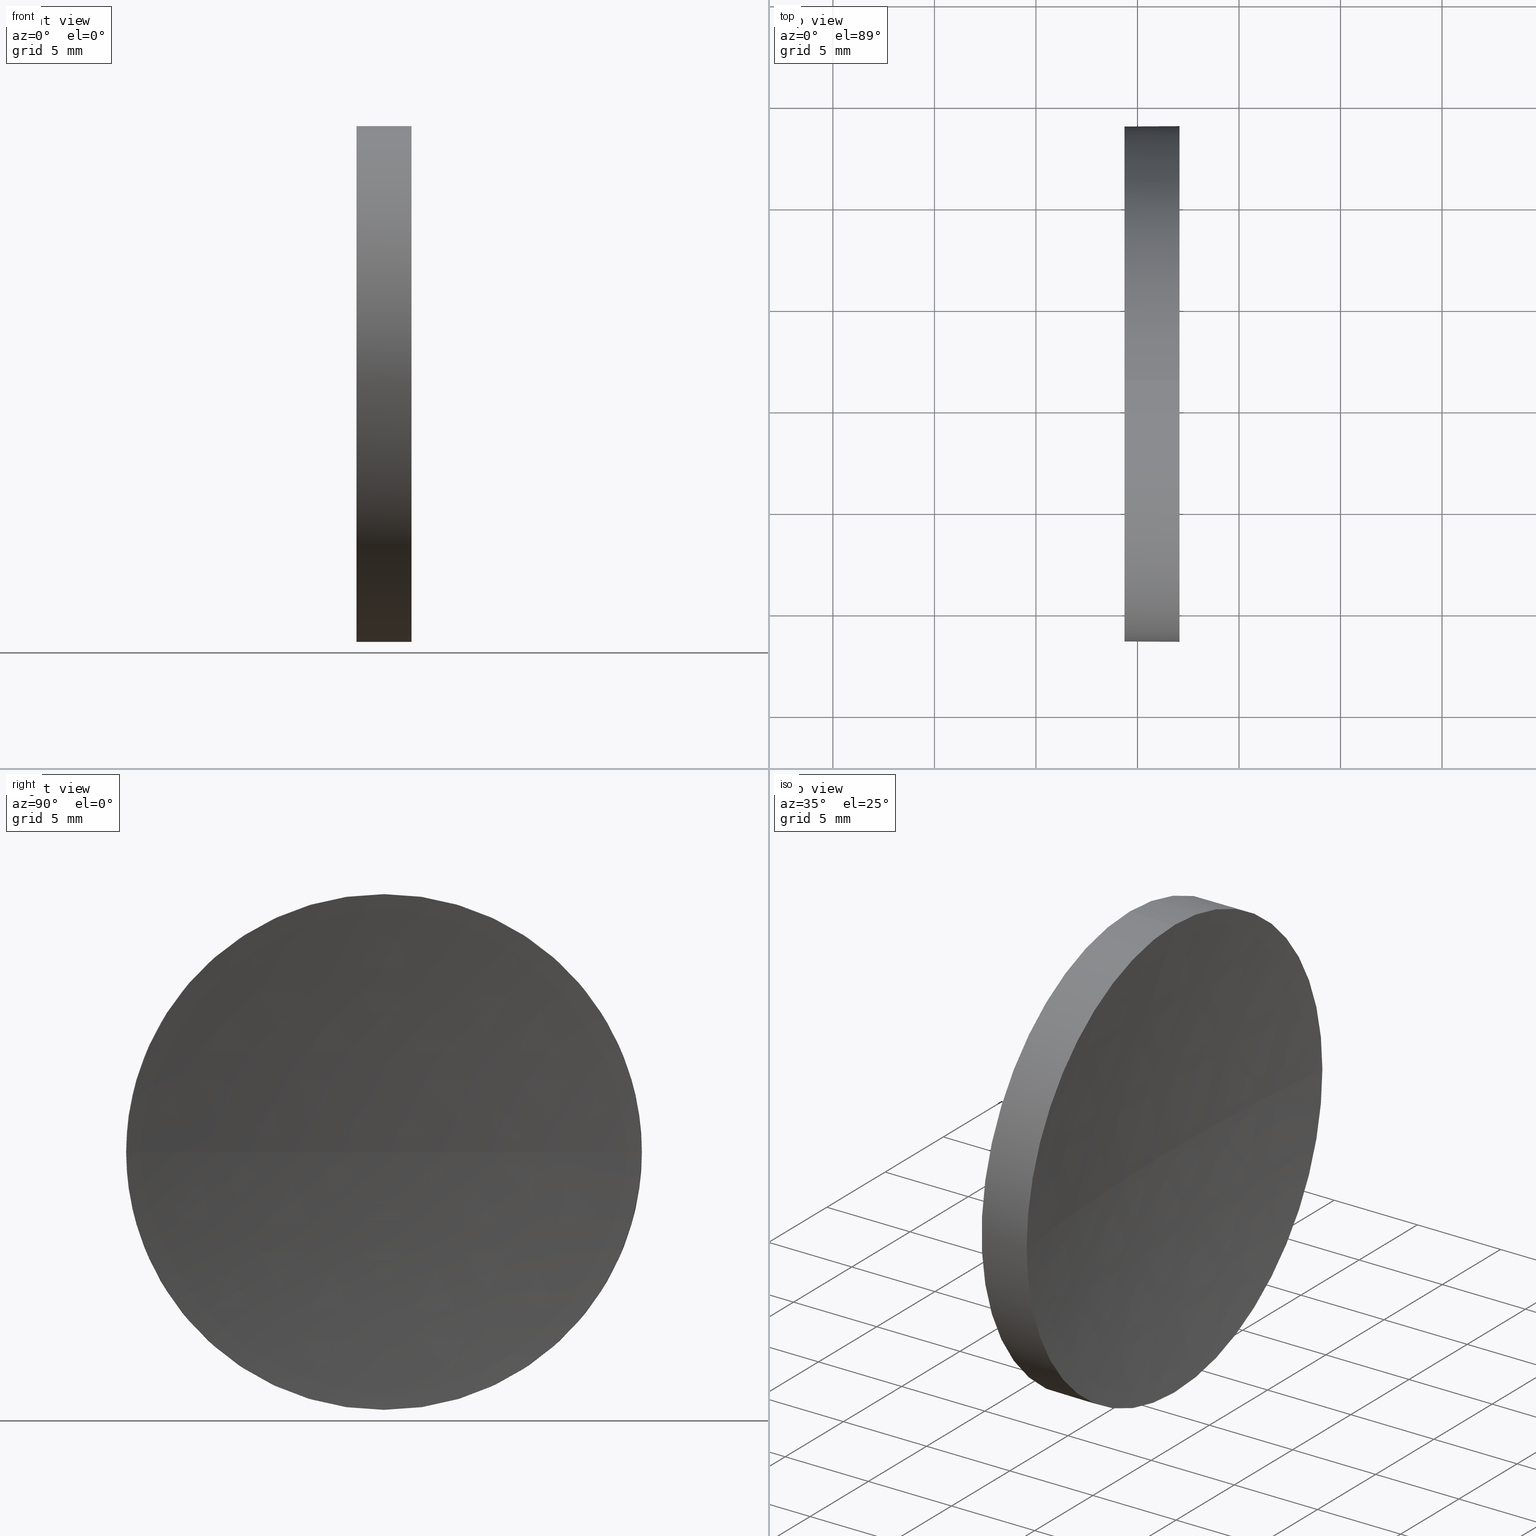
[diagram: canonical four-view strip — front | top / right | iso, engineering-drawing reading convention]
A machine part, canonical four-view strip (front | top / right | iso — engineering-drawing reading convention). The complete STEP part file that produces these views, byte-faithful:
ISO-10303-21;
HEADER;
FILE_DESCRIPTION (( 'STEP AP214' ),
    '1' );
FILE_NAME ('120271.STEP',
    '2019-06-25T03:34:57',
    ( '' ),
    ( '' ),
    'SwSTEP 2.0',
    'SolidWorks 2016',
    '' );
FILE_SCHEMA (( 'AUTOMOTIVE_DESIGN' ));
ENDSEC;

DATA;
#1 = CARTESIAN_POINT ( 'NONE',  ( 111.9552297575605700, 71.19398908659370300, 0.0000000000000000000 ) ) ;
#2 = DIRECTION ( 'NONE',  ( -1.000000000000000000, -0.0000000000000000000, -0.0000000000000000000 ) ) ;
#3 = DIRECTION ( 'NONE',  ( 0.0000000000000000000, 0.0000000000000000000, 1.000000000000000000 ) ) ;
#4 = DIRECTION ( 'NONE',  ( 0.0000000000000000000, 0.0000000000000000000, 1.000000000000000000 ) ) ;
#5 = SURFACE_STYLE_FILL_AREA ( #44 ) ;
#6 =( LENGTH_UNIT ( ) NAMED_UNIT ( * ) SI_UNIT ( .MILLI., .METRE. ) );
#7 = DIRECTION ( 'NONE',  ( -1.000000000000000000, -0.0000000000000000000, -0.0000000000000000000 ) ) ;
#8 = APPLICATION_PROTOCOL_DEFINITION ( 'draft international standard', 'automotive_design', 1998, #130 ) ;
#9 = EDGE_CURVE ( 'NONE', #12, #182, #91, .T. ) ;
#10 = PLANE ( 'NONE',  #90 ) ;
#11 = EDGE_LOOP ( 'NONE', ( #39, #54, #65, #102, #119 ) ) ;
#12 = VERTEX_POINT ( 'NONE', #58 ) ;
#13 = PRODUCT_DEFINITION_SHAPE ( 'NONE', 'NONE',  #160 ) ;
#14 = EDGE_CURVE ( 'NONE', #67, #37, #124, .T. ) ;
#15 = DIRECTION ( 'NONE',  ( -1.000000000000000000, -0.0000000000000000000, -0.0000000000000000000 ) ) ;
#16 = DIRECTION ( 'NONE',  ( -1.000000000000000000, -0.0000000000000000000, -0.0000000000000000000 ) ) ;
#17 = AXIS2_PLACEMENT_3D ( 'NONE', #149, #174, #31 ) ;
#18 = DIRECTION ( 'NONE',  ( 0.0000000000000000000, 0.0000000000000000000, 1.000000000000000000 ) ) ;
#19 = ADVANCED_BREP_SHAPE_REPRESENTATION ( '120271', ( #106, #155 ), #118 ) ;
#20 = ADVANCED_FACE ( 'NONE', ( #88 ), #170, .F. ) ;
#21 = CARTESIAN_POINT ( 'NONE',  ( 119.3629307920347200, 71.19398908659370300, 0.0000000000000000000 ) ) ;
#22 = VERTEX_POINT ( 'NONE', #176 ) ;
#23 = FILL_AREA_STYLE_COLOUR ( '', #77 ) ;
#24 = CIRCLE ( 'NONE', #29, 12.69999999999997400 ) ;
#25 = DIRECTION ( 'NONE',  ( -1.000000000000000000, -0.0000000000000000000, -0.0000000000000000000 ) ) ;
#26 = EDGE_CURVE ( 'NONE', #37, #182, #133, .T. ) ;
#27 = VECTOR ( 'NONE', #16, 1000.000000000000000 ) ;
#28 = ORIENTED_EDGE ( 'NONE', *, *, #93, .F. ) ;
#29 = AXIS2_PLACEMENT_3D ( 'NONE', #81, #2, #95 ) ;
#30 = LINE ( 'NONE', #126, #97 ) ;
#31 = DIRECTION ( 'NONE',  ( 0.0000000000000000000, -1.000000000000000000, 0.0000000000000000000 ) ) ;
#32 = ADVANCED_FACE ( 'NONE', ( #51 ), #100, .T. ) ;
#33 = CARTESIAN_POINT ( 'NONE',  ( 119.3629307920347200, 71.19398908659370300, 0.0000000000000000000 ) ) ;
#34 = EDGE_LOOP ( 'NONE', ( #161, #79, #60, #166 ) ) ;
#35 =( GEOMETRIC_REPRESENTATION_CONTEXT ( 3 ) GLOBAL_UNCERTAINTY_ASSIGNED_CONTEXT ( ( #74 ) ) GLOBAL_UNIT_ASSIGNED_CONTEXT ( ( #103, #84, #136 ) ) REPRESENTATION_CONTEXT ( 'NONE', 'WORKASPACE' ) );
#36 = APPLICATION_PROTOCOL_DEFINITION ( 'draft international standard', 'automotive_design', 1998, #154 ) ;
#37 = VERTEX_POINT ( 'NONE', #147 ) ;
#38 = LINE ( 'NONE', #57, #27 ) ;
#39 = ORIENTED_EDGE ( 'NONE', *, *, #43, .T. ) ;
#40 = CARTESIAN_POINT ( 'NONE',  ( 235.9829307920347200, 71.19398908659371700, 0.0000000000000000000 ) ) ;
#41 = AXIS2_PLACEMENT_3D ( 'NONE', #89, #87, #71 ) ;
#42 = DIRECTION ( 'NONE',  ( -1.000000000000000000, -0.0000000000000000000, -0.0000000000000000000 ) ) ;
#43 = EDGE_CURVE ( 'NONE', #37, #22, #24, .T. ) ;
#44 = FILL_AREA_STYLE ('',( #23 ) ) ;
#45 = CARTESIAN_POINT ( 'NONE',  ( 0.0000000000000000000, 0.0000000000000000000, 0.0000000000000000000 ) ) ;
#46 = ORIENTED_EDGE ( 'NONE', *, *, #43, .F. ) ;
#47 = CARTESIAN_POINT ( 'NONE',  ( 119.3629307920347200, 71.19398908659370300, 0.0000000000000000000 ) ) ;
#48 =( NAMED_UNIT ( * ) SI_UNIT ( $, .STERADIAN. ) SOLID_ANGLE_UNIT ( ) );
#49 = PRODUCT_CONTEXT ( 'NONE', #130, 'mechanical' ) ;
#50 = ORIENTED_EDGE ( 'NONE', *, *, #127, .F. ) ;
#51 = FACE_OUTER_BOUND ( 'NONE', #11, .T. ) ;
#52 = CIRCLE ( 'NONE', #122, 12.70000000000000300 ) ;
#53 = AXIS2_PLACEMENT_3D ( 'NONE', #163, #55, #108 ) ;
#54 = ORIENTED_EDGE ( 'NONE', *, *, #93, .T. ) ;
#55 = DIRECTION ( 'NONE',  ( -1.000000000000000000, -0.0000000000000000000, -0.0000000000000000000 ) ) ;
#56 = CIRCLE ( 'NONE', #96, 12.69999999999997400 ) ;
#57 = CARTESIAN_POINT ( 'NONE',  ( 111.9552297575605700, 71.19398908659370300, -12.69999999999998900 ) ) ;
#58 = CARTESIAN_POINT ( 'NONE',  ( 122.0686893645468100, 58.49398908659369300, 0.0000000000000000000 ) ) ;
#59 = FILL_AREA_STYLE ('',( #61 ) ) ;
#60 = ORIENTED_EDGE ( 'NONE', *, *, #83, .F. ) ;
#61 = FILL_AREA_STYLE_COLOUR ( '', #63 ) ;
#62 = SURFACE_SIDE_STYLE ('',( #5 ) ) ;
#63 = COLOUR_RGB ( '',1.000000000000000000, 1.000000000000000000, 1.000000000000000000 ) ;
#64 = MECHANICAL_DESIGN_GEOMETRIC_PRESENTATION_REPRESENTATION (  '', ( #110 ), #35 ) ;
#65 = ORIENTED_EDGE ( 'NONE', *, *, #184, .F. ) ;
#66 = FACE_OUTER_BOUND ( 'NONE', #173, .T. ) ;
#67 = VERTEX_POINT ( 'NONE', #177 ) ;
#68 = PRESENTATION_STYLE_ASSIGNMENT (( #134 ) ) ;
#69 = AXIS2_PLACEMENT_3D ( 'NONE', #1, #42, #94 ) ;
#70 = DIRECTION ( 'NONE',  ( -1.000000000000000000, -0.0000000000000000000, -0.0000000000000000000 ) ) ;
#71 = DIRECTION ( 'NONE',  ( 0.0000000000000000000, -1.000000000000000000, 0.0000000000000000000 ) ) ;
#72 = ADVANCED_FACE ( 'NONE', ( #120 ), #112, .T. ) ;
#73 = DIRECTION ( 'NONE',  ( 0.0000000000000000000, 0.0000000000000000000, -1.000000000000000000 ) ) ;
#74 = UNCERTAINTY_MEASURE_WITH_UNIT (LENGTH_MEASURE( 1.000000000000000100E-005 ), #103, 'distance_accuracy_value', 'NONE');
#75 = PRODUCT_DEFINITION_CONTEXT ( 'detailed design', #154, 'design' ) ;
#76 = EDGE_CURVE ( 'NONE', #67, #141, #30, .T. ) ;
#77 = COLOUR_RGB ( '',1.000000000000000000, 1.000000000000000000, 1.000000000000000000 ) ;
#78 = DIRECTION ( 'NONE',  ( 0.0000000000000000000, 0.0000000000000000000, 1.000000000000000000 ) ) ;
#79 = ORIENTED_EDGE ( 'NONE', *, *, #14, .F. ) ;
#80 = ORIENTED_EDGE ( 'NONE', *, *, #127, .T. ) ;
#81 = CARTESIAN_POINT ( 'NONE',  ( 122.0686893645468100, 71.19398908659370300, 0.0000000000000000000 ) ) ;
#82 = DIRECTION ( 'NONE',  ( 0.0000000000000000000, -1.000000000000000000, -1.224646799147353000E-016 ) ) ;
#83 = EDGE_CURVE ( 'NONE', #12, #67, #146, .T. ) ;
#84 =( NAMED_UNIT ( * ) PLANE_ANGLE_UNIT ( ) SI_UNIT ( $, .RADIAN. ) );
#85 = DIRECTION ( 'NONE',  ( 0.0000000000000000000, 0.0000000000000000000, 1.000000000000000000 ) ) ;
#86 = ORIENTED_EDGE ( 'NONE', *, *, #156, .T. ) ;
#87 = DIRECTION ( 'NONE',  ( 0.0000000000000000000, 0.0000000000000000000, 1.000000000000000000 ) ) ;
#88 = FACE_OUTER_BOUND ( 'NONE', #105, .T. ) ;
#89 = CARTESIAN_POINT ( 'NONE',  ( 235.9829307920347200, 71.19398908659371700, 0.0000000000000000000 ) ) ;
#90 = AXIS2_PLACEMENT_3D ( 'NONE', #47, #151, #73 ) ;
#91 = CIRCLE ( 'NONE', #175, 114.6200000000000200 ) ;
#92 = SURFACE_STYLE_FILL_AREA ( #59 ) ;
#93 = EDGE_CURVE ( 'NONE', #22, #169, #38, .T. ) ;
#94 = DIRECTION ( 'NONE',  ( 0.0000000000000000000, 0.0000000000000000000, 1.000000000000000000 ) ) ;
#95 = DIRECTION ( 'NONE',  ( 0.0000000000000000000, 0.0000000000000000000, 1.000000000000000000 ) ) ;
#96 = AXIS2_PLACEMENT_3D ( 'NONE', #114, #7, #4 ) ;
#97 = VECTOR ( 'NONE', #99, 1000.000000000000000 ) ;
#98 = CARTESIAN_POINT ( 'NONE',  ( 121.3629307920347000, 71.19398908659370300, 0.0000000000000000000 ) ) ;
#99 = DIRECTION ( 'NONE',  ( -1.000000000000000000, -0.0000000000000000000, -0.0000000000000000000 ) ) ;
#100 = CYLINDRICAL_SURFACE ( 'NONE', #69, 12.69999999999998900 ) ;
#101 =( LENGTH_UNIT ( ) NAMED_UNIT ( * ) SI_UNIT ( .MILLI., .METRE. ) );
#102 = ORIENTED_EDGE ( 'NONE', *, *, #76, .F. ) ;
#103 =( LENGTH_UNIT ( ) NAMED_UNIT ( * ) SI_UNIT ( .MILLI., .METRE. ) );
#104 = AXIS2_PLACEMENT_3D ( 'NONE', #165, #25, #85 ) ;
#105 = EDGE_LOOP ( 'NONE', ( #46, #158, #131, #145 ) ) ;
#106 = MANIFOLD_SOLID_BREP ( '��ת1', #121 ) ;
#107 = AXIS2_PLACEMENT_3D ( 'NONE', #109, #15, #3 ) ;
#108 = DIRECTION ( 'NONE',  ( 0.0000000000000000000, 0.0000000000000000000, 1.000000000000000000 ) ) ;
#109 = CARTESIAN_POINT ( 'NONE',  ( 111.9552297575605700, 71.19398908659370300, 0.0000000000000000000 ) ) ;
#110 = STYLED_ITEM ( 'NONE', ( #68 ), #106 ) ;
#111 = ORIENTED_EDGE ( 'NONE', *, *, #184, .T. ) ;
#112 = CYLINDRICAL_SURFACE ( 'NONE', #107, 12.69999999999998900 ) ;
#113 = PRODUCT_RELATED_PRODUCT_CATEGORY ( 'part', '', ( #115 ) ) ;
#114 = CARTESIAN_POINT ( 'NONE',  ( 122.0686893645468100, 71.19398908659370300, 0.0000000000000000000 ) ) ;
#115 = PRODUCT ( '120271', '120271', '', ( #49 ) ) ;
#116 = ADVANCED_FACE ( 'NONE', ( #183 ), #140, .F. ) ;
#117 = DIRECTION ( 'NONE',  ( -1.000000000000000000, -0.0000000000000000000, -0.0000000000000000000 ) ) ;
#118 =( GEOMETRIC_REPRESENTATION_CONTEXT ( 3 ) GLOBAL_UNCERTAINTY_ASSIGNED_CONTEXT ( ( #167 ) ) GLOBAL_UNIT_ASSIGNED_CONTEXT ( ( #6, #180, #132 ) ) REPRESENTATION_CONTEXT ( 'NONE', 'WORKASPACE' ) );
#119 = ORIENTED_EDGE ( 'NONE', *, *, #14, .T. ) ;
#120 = FACE_OUTER_BOUND ( 'NONE', #123, .T. ) ;
#121 = CLOSED_SHELL ( 'NONE', ( #32, #20, #116, #72, #135 ) ) ;
#122 = AXIS2_PLACEMENT_3D ( 'NONE', #33, #117, #18 ) ;
#123 = EDGE_LOOP ( 'NONE', ( #28, #86, #178, #185, #50 ) ) ;
#124 = CIRCLE ( 'NONE', #53, 12.69999999999997400 ) ;
#125 = DIRECTION ( 'NONE',  ( -1.000000000000000000, 0.0000000000000000000, 0.0000000000000000000 ) ) ;
#126 = CARTESIAN_POINT ( 'NONE',  ( 111.9552297575605700, 71.19398908659370300, 12.69999999999998900 ) ) ;
#127 = EDGE_CURVE ( 'NONE', #169, #141, #137, .T. ) ;
#128 = DIRECTION ( 'NONE',  ( 0.0000000000000000000, 0.0000000000000000000, -1.000000000000000000 ) ) ;
#129 = DIRECTION ( 'NONE',  ( 0.0000000000000000000, -1.224646799147353200E-016, 1.000000000000000000 ) ) ;
#130 = APPLICATION_CONTEXT ( 'automotive_design' ) ;
#131 = ORIENTED_EDGE ( 'NONE', *, *, #9, .F. ) ;
#132 =( NAMED_UNIT ( * ) SI_UNIT ( $, .STERADIAN. ) SOLID_ANGLE_UNIT ( ) );
#133 = CIRCLE ( 'NONE', #171, 114.6200000000000200 ) ;
#134 = SURFACE_STYLE_USAGE ( .BOTH. , #181 ) ;
#135 = ADVANCED_FACE ( 'NONE', ( #66 ), #10, .F. ) ;
#136 =( NAMED_UNIT ( * ) SI_UNIT ( $, .STERADIAN. ) SOLID_ANGLE_UNIT ( ) );
#137 = CIRCLE ( 'NONE', #162, 12.70000000000000300 ) ;
#138 = DIRECTION ( 'NONE',  ( 1.000000000000000000, 0.0000000000000000000, 0.0000000000000000000 ) ) ;
#139 = STYLED_ITEM ( 'NONE', ( #143 ), #19 ) ;
#140 = SPHERICAL_SURFACE ( 'NONE', #41, 114.6200000000000200 ) ;
#141 = VERTEX_POINT ( 'NONE', #144 ) ;
#142 = PRESENTATION_LAYER_ASSIGNMENT (  '', '', ( #110 ) ) ;
#143 = PRESENTATION_STYLE_ASSIGNMENT (( #150 ) ) ;
#144 = CARTESIAN_POINT ( 'NONE',  ( 119.3629307920347200, 71.19398908659370300, 12.70000000000000300 ) ) ;
#145 = ORIENTED_EDGE ( 'NONE', *, *, #156, .F. ) ;
#146 = CIRCLE ( 'NONE', #104, 12.69999999999997400 ) ;
#147 = CARTESIAN_POINT ( 'NONE',  ( 122.0686893645468100, 83.89398908659373400, 1.555301434917139600E-015 ) ) ;
#148 = PRESENTATION_LAYER_ASSIGNMENT (  '', '', ( #139 ) ) ;
#149 = CARTESIAN_POINT ( 'NONE',  ( 235.9829307920347200, 71.19398908659371700, 0.0000000000000000000 ) ) ;
#150 = SURFACE_STYLE_USAGE ( .BOTH. , #62 ) ;
#151 = DIRECTION ( 'NONE',  ( 1.000000000000000000, 0.0000000000000000000, 0.0000000000000000000 ) ) ;
#152 = CARTESIAN_POINT ( 'NONE',  ( 119.3629307920347200, 71.19398908659370300, -12.70000000000000300 ) ) ;
#153 = DIRECTION ( 'NONE',  ( 0.0000000000000000000, 0.0000000000000000000, 1.000000000000000000 ) ) ;
#154 = APPLICATION_CONTEXT ( 'automotive_design' ) ;
#155 = AXIS2_PLACEMENT_3D ( 'NONE', #45, #78, #138 ) ;
#156 = EDGE_CURVE ( 'NONE', #22, #12, #56, .T. ) ;
#157 = SHAPE_DEFINITION_REPRESENTATION ( #13, #19 ) ;
#158 = ORIENTED_EDGE ( 'NONE', *, *, #26, .T. ) ;
#159 = MECHANICAL_DESIGN_GEOMETRIC_PRESENTATION_REPRESENTATION (  '', ( #139 ), #168 ) ;
#160 = PRODUCT_DEFINITION ( 'δ֪', '', #186, #75 ) ;
#161 = ORIENTED_EDGE ( 'NONE', *, *, #26, .F. ) ;
#162 = AXIS2_PLACEMENT_3D ( 'NONE', #21, #70, #153 ) ;
#163 = CARTESIAN_POINT ( 'NONE',  ( 122.0686893645468100, 71.19398908659370300, 0.0000000000000000000 ) ) ;
#164 = CARTESIAN_POINT ( 'NONE',  ( 235.9829307920347200, 71.19398908659371700, 0.0000000000000000000 ) ) ;
#165 = CARTESIAN_POINT ( 'NONE',  ( 122.0686893645468100, 71.19398908659370300, 0.0000000000000000000 ) ) ;
#166 = ORIENTED_EDGE ( 'NONE', *, *, #9, .T. ) ;
#167 = UNCERTAINTY_MEASURE_WITH_UNIT (LENGTH_MEASURE( 1.000000000000000100E-005 ), #6, 'distance_accuracy_value', 'NONE');
#168 =( GEOMETRIC_REPRESENTATION_CONTEXT ( 3 ) GLOBAL_UNCERTAINTY_ASSIGNED_CONTEXT ( ( #172 ) ) GLOBAL_UNIT_ASSIGNED_CONTEXT ( ( #101, #179, #48 ) ) REPRESENTATION_CONTEXT ( 'NONE', 'WORKASPACE' ) );
#169 = VERTEX_POINT ( 'NONE', #152 ) ;
#170 = SPHERICAL_SURFACE ( 'NONE', #17, 114.6200000000000200 ) ;
#171 = AXIS2_PLACEMENT_3D ( 'NONE', #40, #129, #82 ) ;
#172 = UNCERTAINTY_MEASURE_WITH_UNIT (LENGTH_MEASURE( 1.000000000000000100E-005 ), #101, 'distance_accuracy_value', 'NONE');
#173 = EDGE_LOOP ( 'NONE', ( #111, #80 ) ) ;
#174 = DIRECTION ( 'NONE',  ( 0.0000000000000000000, 0.0000000000000000000, 1.000000000000000000 ) ) ;
#175 = AXIS2_PLACEMENT_3D ( 'NONE', #164, #128, #125 ) ;
#176 = CARTESIAN_POINT ( 'NONE',  ( 122.0686893645468100, 71.19398908659370300, -12.69999999999997400 ) ) ;
#177 = CARTESIAN_POINT ( 'NONE',  ( 122.0686893645468100, 71.19398908659370300, 12.69999999999997400 ) ) ;
#178 = ORIENTED_EDGE ( 'NONE', *, *, #83, .T. ) ;
#179 =( NAMED_UNIT ( * ) PLANE_ANGLE_UNIT ( ) SI_UNIT ( $, .RADIAN. ) );
#180 =( NAMED_UNIT ( * ) PLANE_ANGLE_UNIT ( ) SI_UNIT ( $, .RADIAN. ) );
#181 = SURFACE_SIDE_STYLE ('',( #92 ) ) ;
#182 = VERTEX_POINT ( 'NONE', #98 ) ;
#183 = FACE_OUTER_BOUND ( 'NONE', #34, .T. ) ;
#184 = EDGE_CURVE ( 'NONE', #141, #169, #52, .T. ) ;
#185 = ORIENTED_EDGE ( 'NONE', *, *, #76, .T. ) ;
#186 = PRODUCT_DEFINITION_FORMATION_WITH_SPECIFIED_SOURCE ( '�κ�', '', #115, .NOT_KNOWN. ) ;
ENDSEC;
END-ISO-10303-21;
